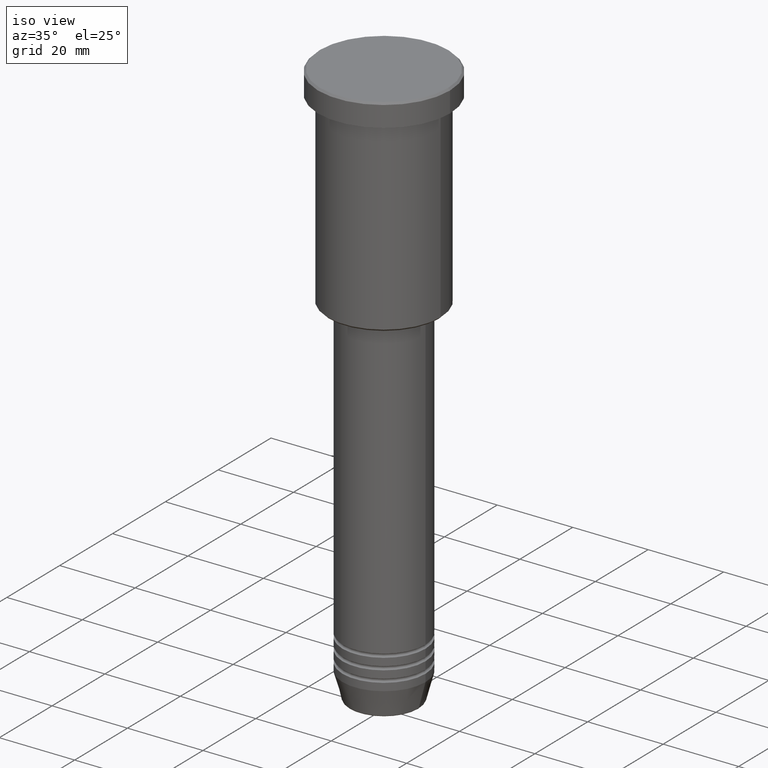
[diagram: clean part render]
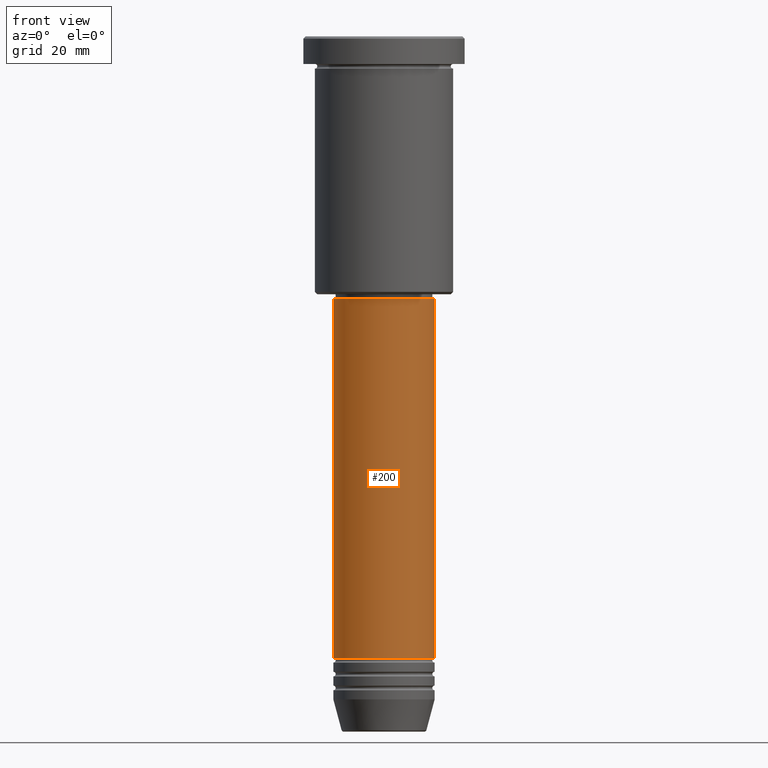
[diagram: tour spotlight — one face highlighted and labeled with its STEP entity id]
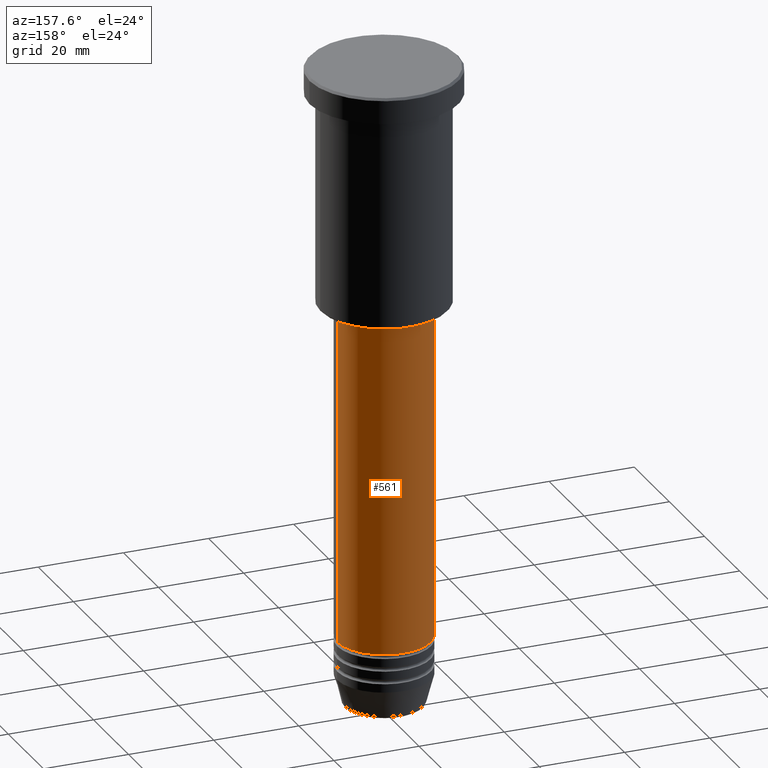
[diagram: tour spotlight — one face highlighted and labeled with its STEP entity id]
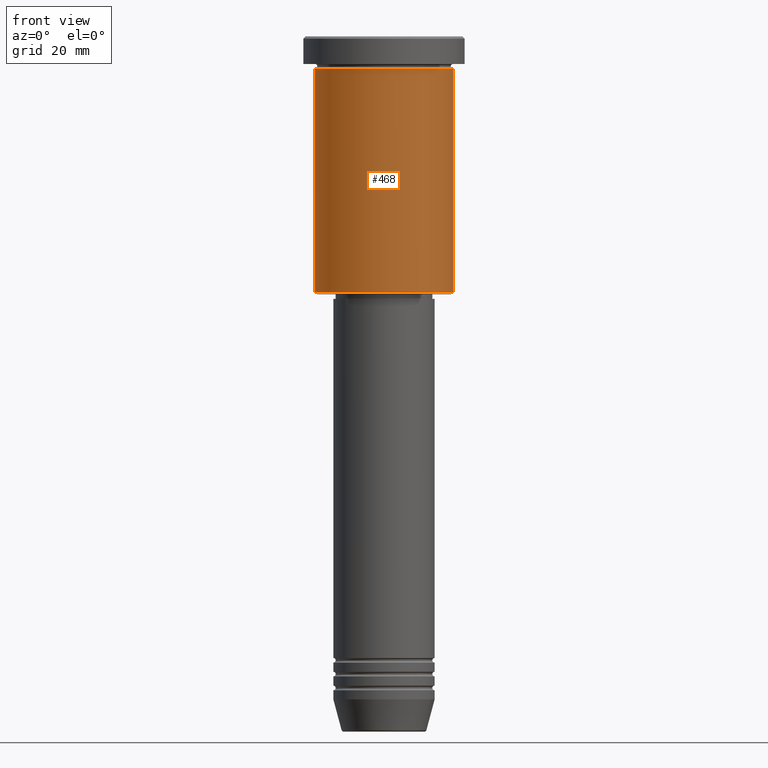
[diagram: tour spotlight — one face highlighted and labeled with its STEP entity id]
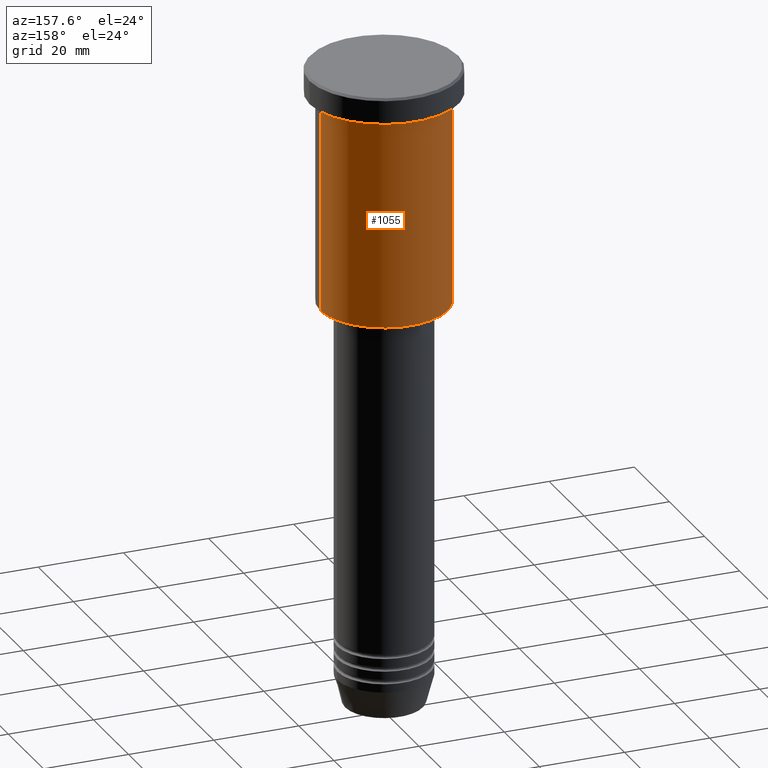
[diagram: tour spotlight — one face highlighted and labeled with its STEP entity id]
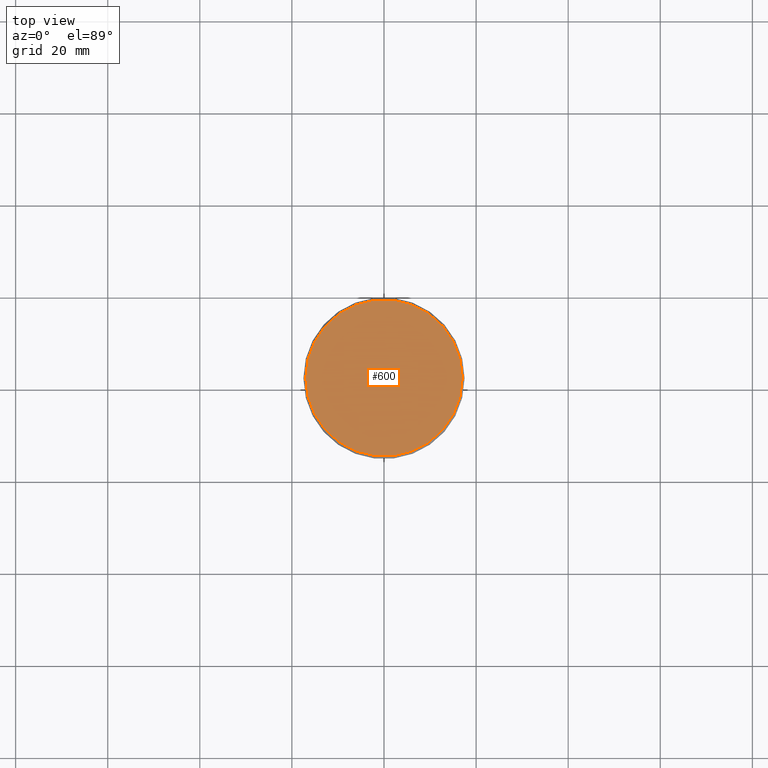
[diagram: tour spotlight — one face highlighted and labeled with its STEP entity id]
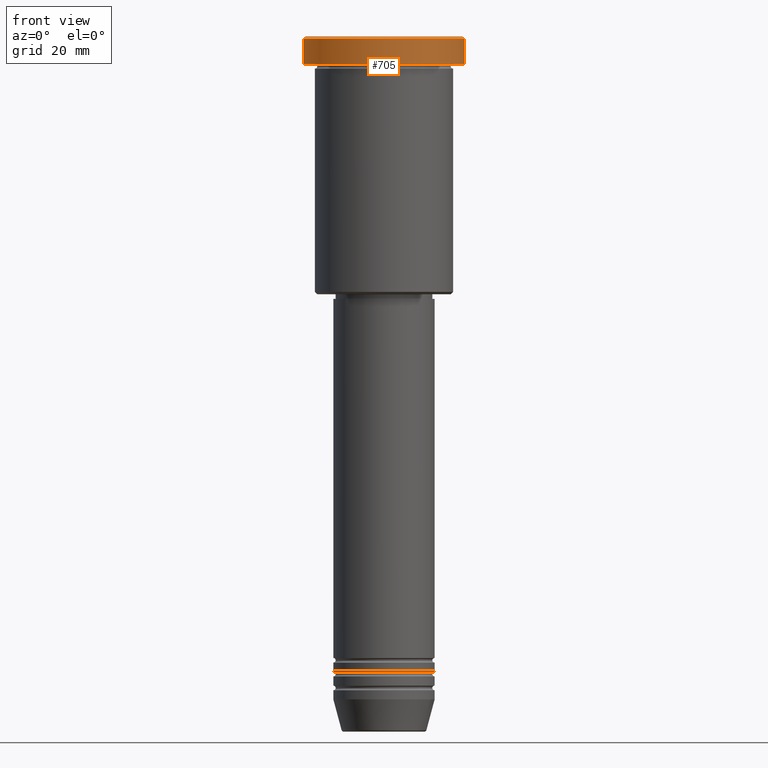
[diagram: tour spotlight — one face highlighted and labeled with its STEP entity id]
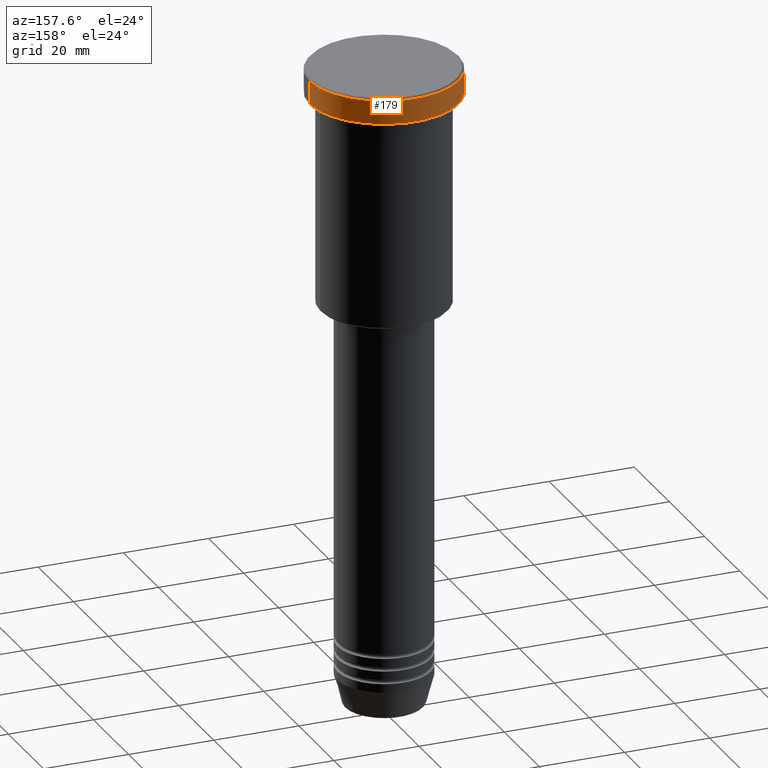
[diagram: tour spotlight — one face highlighted and labeled with its STEP entity id]
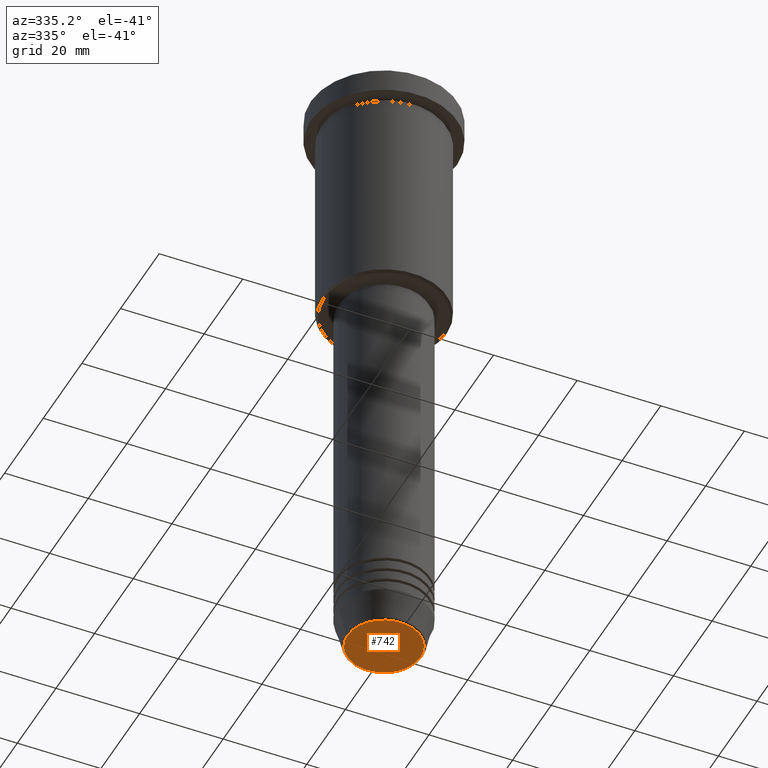
[diagram: tour spotlight — one face highlighted and labeled with its STEP entity id]
A machine part: a face-by-face anatomy tour. The part has 43 B-rep faces; the first image is the clean iso view, then the 8 largest visible faces are spotlighted one at a time (largest first), each with its STEP entity span.

Face 1 — front view, entity #200. In plain terms, the highlighted cylindrical surface (partial cylindrical patch) has radius 11 mm, axis along (-0, -0, 1).
Definition (entity closure, byte-faithful):
#83 = CARTESIAN_POINT ( 'NONE',  ( 0.000000000000000000, 0.000000000000000000, -134.9999999999999716 ) ) ;
#148 = ORIENTED_EDGE ( 'NONE', *, *, #1083, .T. ) ;
#160 = CARTESIAN_POINT ( 'NONE',  ( -11.00000000000000000, 1.347111479062088405E-15, -57.00000000000001421 ) ) ;
#167 = DIRECTION ( 'NONE',  ( 1.000000000000000000, 0.000000000000000000, 0.000000000000000000 ) ) ;
#172 = FACE_OUTER_BOUND ( 'NONE', #384, .T. ) ;
#174 = VERTEX_POINT ( 'NONE', #1042 ) ;
#180 = AXIS2_PLACEMENT_3D ( 'NONE', #83, #617, #1158 ) ;
#200 = ADVANCED_FACE ( 'NONE', ( #172 ), #710, .T. ) ;
#233 = EDGE_CURVE ( 'NONE', #443, #391, #406, .T. ) ;
#254 = VERTEX_POINT ( 'NONE', #160 ) ;
#272 = DIRECTION ( 'NONE',  ( -0.000000000000000000, -0.000000000000000000, 1.000000000000000000 ) ) ;
#330 = DIRECTION ( 'NONE',  ( 1.000000000000000000, 0.000000000000000000, 0.000000000000000000 ) ) ;
#343 = ORIENTED_EDGE ( 'NONE', *, *, #508, .F. ) ;
#384 = EDGE_LOOP ( 'NONE', ( #343, #467, #148, #548 ) ) ;
#391 = VERTEX_POINT ( 'NONE', #815 ) ;
#406 = CIRCLE ( 'NONE', #180, 11.00000000000000000 ) ;
#443 = VERTEX_POINT ( 'NONE', #472 ) ;
#467 = ORIENTED_EDGE ( 'NONE', *, *, #233, .T. ) ;
#472 = CARTESIAN_POINT ( 'NONE',  ( -11.00000000000000000, 1.347111479062088405E-15, -134.9999999999999716 ) ) ;
#508 = EDGE_CURVE ( 'NONE', #443, #254, #671, .T. ) ;
#524 = DIRECTION ( 'NONE',  ( -0.000000000000000000, -0.000000000000000000, 1.000000000000000000 ) ) ;
#548 = ORIENTED_EDGE ( 'NONE', *, *, #1003, .F. ) ;
#565 = DIRECTION ( 'NONE',  ( -0.000000000000000000, -0.000000000000000000, 1.000000000000000000 ) ) ;
#610 = CIRCLE ( 'NONE', #1019, 11.00000000000000000 ) ;
#617 = DIRECTION ( 'NONE',  ( -0.000000000000000000, -0.000000000000000000, 1.000000000000000000 ) ) ;
#667 = CARTESIAN_POINT ( 'NONE',  ( 0.000000000000000000, 0.000000000000000000, -57.00000000000001421 ) ) ;
#671 = LINE ( 'NONE', #954, #1002 ) ;
#710 = CYLINDRICAL_SURFACE ( 'NONE', #786, 11.00000000000000000 ) ;
#786 = AXIS2_PLACEMENT_3D ( 'NONE', #892, #524, #167 ) ;
#812 = VECTOR ( 'NONE', #272, 1000.000000000000000 ) ;
#815 = CARTESIAN_POINT ( 'NONE',  ( 11.00000000000000000, 0.000000000000000000, -134.9999999999999716 ) ) ;
#892 = CARTESIAN_POINT ( 'NONE',  ( 0.000000000000000000, 0.000000000000000000, 0.000000000000000000 ) ) ;
#903 = LINE ( 'NONE', #1155, #812 ) ;
#954 = CARTESIAN_POINT ( 'NONE',  ( -11.00000000000000000, 1.347111479062088405E-15, 0.000000000000000000 ) ) ;
#1002 = VECTOR ( 'NONE', #565, 1000.000000000000000 ) ;
#1003 = EDGE_CURVE ( 'NONE', #254, #174, #610, .T. ) ;
#1019 = AXIS2_PLACEMENT_3D ( 'NONE', #667, #1140, #330 ) ;
#1042 = CARTESIAN_POINT ( 'NONE',  ( 11.00000000000000000, 0.000000000000000000, -57.00000000000001421 ) ) ;
#1083 = EDGE_CURVE ( 'NONE', #391, #174, #903, .T. ) ;
#1140 = DIRECTION ( 'NONE',  ( -0.000000000000000000, -0.000000000000000000, 1.000000000000000000 ) ) ;
#1155 = CARTESIAN_POINT ( 'NONE',  ( 11.00000000000000000, 0.000000000000000000, 0.000000000000000000 ) ) ;
#1158 = DIRECTION ( 'NONE',  ( 1.000000000000000000, 0.000000000000000000, 0.000000000000000000 ) ) ;

Face 2 — auxiliary view, entity #561. In plain terms, the highlighted cylindrical surface (partial cylindrical patch) has radius 11 mm, axis along (-0, -0, 1).
Definition (entity closure, byte-faithful):
#115 = CYLINDRICAL_SURFACE ( 'NONE', #708, 11.00000000000000000 ) ;
#160 = CARTESIAN_POINT ( 'NONE',  ( -11.00000000000000000, 1.347111479062088405E-15, -57.00000000000001421 ) ) ;
#174 = VERTEX_POINT ( 'NONE', #1042 ) ;
#232 = CARTESIAN_POINT ( 'NONE',  ( 0.000000000000000000, 0.000000000000000000, 0.000000000000000000 ) ) ;
#254 = VERTEX_POINT ( 'NONE', #160 ) ;
#272 = DIRECTION ( 'NONE',  ( -0.000000000000000000, -0.000000000000000000, 1.000000000000000000 ) ) ;
#341 = DIRECTION ( 'NONE',  ( -0.000000000000000000, -0.000000000000000000, 1.000000000000000000 ) ) ;
#352 = ORIENTED_EDGE ( 'NONE', *, *, #1120, .T. ) ;
#356 = CARTESIAN_POINT ( 'NONE',  ( 0.000000000000000000, 0.000000000000000000, -134.9999999999999716 ) ) ;
#391 = VERTEX_POINT ( 'NONE', #815 ) ;
#438 = DIRECTION ( 'NONE',  ( -0.000000000000000000, -0.000000000000000000, 1.000000000000000000 ) ) ;
#443 = VERTEX_POINT ( 'NONE', #472 ) ;
#449 = CIRCLE ( 'NONE', #869, 11.00000000000000000 ) ;
#472 = CARTESIAN_POINT ( 'NONE',  ( -11.00000000000000000, 1.347111479062088405E-15, -134.9999999999999716 ) ) ;
#490 = DIRECTION ( 'NONE',  ( -0.000000000000000000, -0.000000000000000000, 1.000000000000000000 ) ) ;
#508 = EDGE_CURVE ( 'NONE', #443, #254, #671, .T. ) ;
#521 = CIRCLE ( 'NONE', #811, 11.00000000000000000 ) ;
#544 = ORIENTED_EDGE ( 'NONE', *, *, #779, .F. ) ;
#558 = FACE_OUTER_BOUND ( 'NONE', #754, .T. ) ;
#561 = ADVANCED_FACE ( 'NONE', ( #558 ), #115, .T. ) ;
#565 = DIRECTION ( 'NONE',  ( -0.000000000000000000, -0.000000000000000000, 1.000000000000000000 ) ) ;
#591 = ORIENTED_EDGE ( 'NONE', *, *, #508, .T. ) ;
#671 = LINE ( 'NONE', #954, #1002 ) ;
#708 = AXIS2_PLACEMENT_3D ( 'NONE', #232, #490, #1133 ) ;
#723 = ORIENTED_EDGE ( 'NONE', *, *, #1083, .F. ) ;
#754 = EDGE_LOOP ( 'NONE', ( #352, #591, #544, #723 ) ) ;
#779 = EDGE_CURVE ( 'NONE', #174, #254, #521, .T. ) ;
#811 = AXIS2_PLACEMENT_3D ( 'NONE', #1160, #438, #1072 ) ;
#812 = VECTOR ( 'NONE', #272, 1000.000000000000000 ) ;
#815 = CARTESIAN_POINT ( 'NONE',  ( 11.00000000000000000, 0.000000000000000000, -134.9999999999999716 ) ) ;
#869 = AXIS2_PLACEMENT_3D ( 'NONE', #356, #341, #1162 ) ;
#903 = LINE ( 'NONE', #1155, #812 ) ;
#954 = CARTESIAN_POINT ( 'NONE',  ( -11.00000000000000000, 1.347111479062088405E-15, 0.000000000000000000 ) ) ;
#1002 = VECTOR ( 'NONE', #565, 1000.000000000000000 ) ;
#1042 = CARTESIAN_POINT ( 'NONE',  ( 11.00000000000000000, 0.000000000000000000, -57.00000000000001421 ) ) ;
#1072 = DIRECTION ( 'NONE',  ( 1.000000000000000000, 0.000000000000000000, 0.000000000000000000 ) ) ;
#1083 = EDGE_CURVE ( 'NONE', #391, #174, #903, .T. ) ;
#1120 = EDGE_CURVE ( 'NONE', #391, #443, #449, .T. ) ;
#1133 = DIRECTION ( 'NONE',  ( 1.000000000000000000, 0.000000000000000000, 0.000000000000000000 ) ) ;
#1155 = CARTESIAN_POINT ( 'NONE',  ( 11.00000000000000000, 0.000000000000000000, 0.000000000000000000 ) ) ;
#1160 = CARTESIAN_POINT ( 'NONE',  ( 0.000000000000000000, 0.000000000000000000, -57.00000000000001421 ) ) ;
#1162 = DIRECTION ( 'NONE',  ( 1.000000000000000000, 0.000000000000000000, 0.000000000000000000 ) ) ;

Face 3 — front view, entity #468. In plain terms, the highlighted cylindrical surface (partial cylindrical patch) has radius 15 mm, axis along (-0, -0, 1).
Definition (entity closure, byte-faithful):
#5 = DIRECTION ( 'NONE',  ( 1.000000000000000000, 0.000000000000000000, 0.000000000000000000 ) ) ;
#38 = CIRCLE ( 'NONE', #142, 15.00000000000000000 ) ;
#47 = ORIENTED_EDGE ( 'NONE', *, *, #206, .T. ) ;
#53 = DIRECTION ( 'NONE',  ( -0.000000000000000000, -0.000000000000000000, 1.000000000000000000 ) ) ;
#84 = LINE ( 'NONE', #538, #280 ) ;
#100 = VERTEX_POINT ( 'NONE', #309 ) ;
#101 = CARTESIAN_POINT ( 'NONE',  ( 0.000000000000000000, 0.000000000000000000, 0.000000000000000000 ) ) ;
#141 = VERTEX_POINT ( 'NONE', #492 ) ;
#142 = AXIS2_PLACEMENT_3D ( 'NONE', #991, #529, #359 ) ;
#169 = VERTEX_POINT ( 'NONE', #240 ) ;
#184 = CYLINDRICAL_SURFACE ( 'NONE', #945, 15.00000000000000000 ) ;
#202 = DIRECTION ( 'NONE',  ( -0.000000000000000000, -0.000000000000000000, 1.000000000000000000 ) ) ;
#206 = EDGE_CURVE ( 'NONE', #169, #100, #38, .T. ) ;
#212 = VERTEX_POINT ( 'NONE', #514 ) ;
#223 = LINE ( 'NONE', #243, #1088 ) ;
#240 = CARTESIAN_POINT ( 'NONE',  ( -15.00000000000000000, 1.836970198721029589E-15, -55.49999999999996447 ) ) ;
#243 = CARTESIAN_POINT ( 'NONE',  ( 15.00000000000000000, 0.000000000000000000, 0.000000000000000000 ) ) ;
#280 = VECTOR ( 'NONE', #612, 1000.000000000000000 ) ;
#309 = CARTESIAN_POINT ( 'NONE',  ( 15.00000000000000000, 0.000000000000000000, -55.49999999999996447 ) ) ;
#357 = CIRCLE ( 'NONE', #1004, 15.00000000000000000 ) ;
#359 = DIRECTION ( 'NONE',  ( -1.000000000000000000, 0.000000000000000000, 0.000000000000000000 ) ) ;
#468 = ADVANCED_FACE ( 'NONE', ( #1081 ), #184, .T. ) ;
#492 = CARTESIAN_POINT ( 'NONE',  ( -15.00000000000000000, 1.836970198721029589E-15, -6.999999999999995559 ) ) ;
#514 = CARTESIAN_POINT ( 'NONE',  ( 15.00000000000000000, 0.000000000000000000, -6.999999999999995559 ) ) ;
#529 = DIRECTION ( 'NONE',  ( -0.000000000000000000, -0.000000000000000000, 1.000000000000000000 ) ) ;
#538 = CARTESIAN_POINT ( 'NONE',  ( -15.00000000000000000, 1.836970198721029589E-15, 0.000000000000000000 ) ) ;
#612 = DIRECTION ( 'NONE',  ( -0.000000000000000000, -0.000000000000000000, 1.000000000000000000 ) ) ;
#629 = DIRECTION ( 'NONE',  ( 1.000000000000000000, 0.000000000000000000, 0.000000000000000000 ) ) ;
#658 = ORIENTED_EDGE ( 'NONE', *, *, #1011, .T. ) ;
#706 = ORIENTED_EDGE ( 'NONE', *, *, #950, .F. ) ;
#775 = EDGE_LOOP ( 'NONE', ( #1001, #47, #658, #706 ) ) ;
#819 = DIRECTION ( 'NONE',  ( -0.000000000000000000, -0.000000000000000000, 1.000000000000000000 ) ) ;
#922 = CARTESIAN_POINT ( 'NONE',  ( 0.000000000000000000, 0.000000000000000000, -6.999999999999995559 ) ) ;
#945 = AXIS2_PLACEMENT_3D ( 'NONE', #101, #819, #629 ) ;
#950 = EDGE_CURVE ( 'NONE', #141, #212, #357, .T. ) ;
#991 = CARTESIAN_POINT ( 'NONE',  ( 0.000000000000000000, 0.000000000000000000, -55.49999999999996447 ) ) ;
#1001 = ORIENTED_EDGE ( 'NONE', *, *, #1096, .F. ) ;
#1004 = AXIS2_PLACEMENT_3D ( 'NONE', #922, #202, #5 ) ;
#1011 = EDGE_CURVE ( 'NONE', #100, #212, #223, .T. ) ;
#1081 = FACE_OUTER_BOUND ( 'NONE', #775, .T. ) ;
#1088 = VECTOR ( 'NONE', #53, 1000.000000000000000 ) ;
#1096 = EDGE_CURVE ( 'NONE', #169, #141, #84, .T. ) ;

Face 4 — auxiliary view, entity #1055. In plain terms, the highlighted cylindrical surface (partial cylindrical patch) has radius 15 mm, axis along (-0, -0, 1).
Definition (entity closure, byte-faithful):
#12 = ORIENTED_EDGE ( 'NONE', *, *, #1011, .F. ) ;
#43 = DIRECTION ( 'NONE',  ( -0.000000000000000000, -0.000000000000000000, 1.000000000000000000 ) ) ;
#53 = DIRECTION ( 'NONE',  ( -0.000000000000000000, -0.000000000000000000, 1.000000000000000000 ) ) ;
#68 = CARTESIAN_POINT ( 'NONE',  ( 0.000000000000000000, 0.000000000000000000, -6.999999999999995559 ) ) ;
#84 = LINE ( 'NONE', #538, #280 ) ;
#100 = VERTEX_POINT ( 'NONE', #309 ) ;
#138 = EDGE_LOOP ( 'NONE', ( #323, #599, #947, #12 ) ) ;
#141 = VERTEX_POINT ( 'NONE', #492 ) ;
#169 = VERTEX_POINT ( 'NONE', #240 ) ;
#171 = DIRECTION ( 'NONE',  ( 1.000000000000000000, 0.000000000000000000, 0.000000000000000000 ) ) ;
#212 = VERTEX_POINT ( 'NONE', #514 ) ;
#219 = CIRCLE ( 'NONE', #729, 15.00000000000000000 ) ;
#223 = LINE ( 'NONE', #243, #1088 ) ;
#235 = DIRECTION ( 'NONE',  ( 1.000000000000000000, 0.000000000000000000, 0.000000000000000000 ) ) ;
#240 = CARTESIAN_POINT ( 'NONE',  ( -15.00000000000000000, 1.836970198721029589E-15, -55.49999999999996447 ) ) ;
#243 = CARTESIAN_POINT ( 'NONE',  ( 15.00000000000000000, 0.000000000000000000, 0.000000000000000000 ) ) ;
#244 = CIRCLE ( 'NONE', #1110, 15.00000000000000000 ) ;
#253 = CARTESIAN_POINT ( 'NONE',  ( 0.000000000000000000, 0.000000000000000000, -55.49999999999996447 ) ) ;
#263 = DIRECTION ( 'NONE',  ( -0.000000000000000000, -0.000000000000000000, 1.000000000000000000 ) ) ;
#280 = VECTOR ( 'NONE', #612, 1000.000000000000000 ) ;
#309 = CARTESIAN_POINT ( 'NONE',  ( 15.00000000000000000, 0.000000000000000000, -55.49999999999996447 ) ) ;
#323 = ORIENTED_EDGE ( 'NONE', *, *, #1152, .T. ) ;
#492 = CARTESIAN_POINT ( 'NONE',  ( -15.00000000000000000, 1.836970198721029589E-15, -6.999999999999995559 ) ) ;
#514 = CARTESIAN_POINT ( 'NONE',  ( 15.00000000000000000, 0.000000000000000000, -6.999999999999995559 ) ) ;
#538 = CARTESIAN_POINT ( 'NONE',  ( -15.00000000000000000, 1.836970198721029589E-15, 0.000000000000000000 ) ) ;
#599 = ORIENTED_EDGE ( 'NONE', *, *, #1096, .T. ) ;
#612 = DIRECTION ( 'NONE',  ( -0.000000000000000000, -0.000000000000000000, 1.000000000000000000 ) ) ;
#729 = AXIS2_PLACEMENT_3D ( 'NONE', #68, #263, #171 ) ;
#731 = AXIS2_PLACEMENT_3D ( 'NONE', #866, #43, #235 ) ;
#768 = FACE_OUTER_BOUND ( 'NONE', #138, .T. ) ;
#803 = EDGE_CURVE ( 'NONE', #212, #141, #219, .T. ) ;
#866 = CARTESIAN_POINT ( 'NONE',  ( 0.000000000000000000, 0.000000000000000000, 0.000000000000000000 ) ) ;
#912 = DIRECTION ( 'NONE',  ( -1.000000000000000000, 0.000000000000000000, 0.000000000000000000 ) ) ;
#947 = ORIENTED_EDGE ( 'NONE', *, *, #803, .F. ) ;
#968 = CYLINDRICAL_SURFACE ( 'NONE', #731, 15.00000000000000000 ) ;
#988 = DIRECTION ( 'NONE',  ( -0.000000000000000000, -0.000000000000000000, 1.000000000000000000 ) ) ;
#1011 = EDGE_CURVE ( 'NONE', #100, #212, #223, .T. ) ;
#1055 = ADVANCED_FACE ( 'NONE', ( #768 ), #968, .T. ) ;
#1088 = VECTOR ( 'NONE', #53, 1000.000000000000000 ) ;
#1096 = EDGE_CURVE ( 'NONE', #169, #141, #84, .T. ) ;
#1110 = AXIS2_PLACEMENT_3D ( 'NONE', #253, #988, #912 ) ;
#1152 = EDGE_CURVE ( 'NONE', #100, #169, #244, .T. ) ;

Face 5 — top view, entity #600. In plain terms, the highlighted planar face has unit normal (0, -0, 1).
Definition (entity closure, byte-faithful):
#16 = VERTEX_POINT ( 'NONE', #147 ) ;
#34 = EDGE_LOOP ( 'NONE', ( #373, #794 ) ) ;
#73 = EDGE_CURVE ( 'NONE', #511, #16, #621, .T. ) ;
#139 = CARTESIAN_POINT ( 'NONE',  ( 0.000000000000000000, 0.000000000000000000, 0.000000000000000000 ) ) ;
#147 = CARTESIAN_POINT ( 'NONE',  ( -17.00000000000004263, 0.000000000000000000, 0.000000000000000000 ) ) ;
#195 = AXIS2_PLACEMENT_3D ( 'NONE', #419, #782, #1144 ) ;
#221 = CARTESIAN_POINT ( 'NONE',  ( 0.000000000000000000, 0.000000000000000000, 0.000000000000000000 ) ) ;
#267 = EDGE_CURVE ( 'NONE', #16, #511, #981, .T. ) ;
#333 = AXIS2_PLACEMENT_3D ( 'NONE', #139, #654, #1035 ) ;
#373 = ORIENTED_EDGE ( 'NONE', *, *, #267, .T. ) ;
#408 = FACE_OUTER_BOUND ( 'NONE', #34, .T. ) ;
#419 = CARTESIAN_POINT ( 'NONE',  ( 0.000000000000000000, 0.000000000000000000, 0.000000000000000000 ) ) ;
#511 = VERTEX_POINT ( 'NONE', #1136 ) ;
#579 = DIRECTION ( 'NONE',  ( -0.000000000000000000, -0.000000000000000000, 1.000000000000000000 ) ) ;
#600 = ADVANCED_FACE ( 'NONE', ( #408 ), #662, .T. ) ;
#621 = CIRCLE ( 'NONE', #724, 17.00000000000004263 ) ;
#654 = DIRECTION ( 'NONE',  ( 0.000000000000000000, -0.000000000000000000, 1.000000000000000000 ) ) ;
#662 = PLANE ( 'NONE',  #333 ) ;
#678 = DIRECTION ( 'NONE',  ( 1.000000000000000000, 0.000000000000000000, 0.000000000000000000 ) ) ;
#724 = AXIS2_PLACEMENT_3D ( 'NONE', #221, #579, #678 ) ;
#782 = DIRECTION ( 'NONE',  ( -0.000000000000000000, -0.000000000000000000, 1.000000000000000000 ) ) ;
#794 = ORIENTED_EDGE ( 'NONE', *, *, #73, .T. ) ;
#981 = CIRCLE ( 'NONE', #195, 17.00000000000004263 ) ;
#1035 = DIRECTION ( 'NONE',  ( 1.000000000000000000, 0.000000000000000000, 0.000000000000000000 ) ) ;
#1136 = CARTESIAN_POINT ( 'NONE',  ( 17.00000000000004263, 2.112515728529187222E-15, 0.000000000000000000 ) ) ;
#1144 = DIRECTION ( 'NONE',  ( 1.000000000000000000, 0.000000000000000000, 0.000000000000000000 ) ) ;

Face 6 — front view, entity #705. In plain terms, the highlighted cylindrical surface (partial cylindrical patch) has radius 17.5 mm, axis along (-0, -0, 1).
Definition (entity closure, byte-faithful):
#26 = CARTESIAN_POINT ( 'NONE',  ( -17.50000000000000000, 2.143131898507868248E-15, 0.000000000000000000 ) ) ;
#60 = DIRECTION ( 'NONE',  ( -0.000000000000000000, -0.000000000000000000, 1.000000000000000000 ) ) ;
#241 = CIRCLE ( 'NONE', #908, 17.50000000000000000 ) ;
#259 = AXIS2_PLACEMENT_3D ( 'NONE', #977, #60, #883 ) ;
#261 = CIRCLE ( 'NONE', #750, 17.50000000000000000 ) ;
#269 = ORIENTED_EDGE ( 'NONE', *, *, #835, .F. ) ;
#293 = CARTESIAN_POINT ( 'NONE',  ( 17.50000000000000000, 0.000000000000000000, -5.999999999999995559 ) ) ;
#321 = CARTESIAN_POINT ( 'NONE',  ( 0.000000000000000000, 0.000000000000000000, -5.999999999999995559 ) ) ;
#361 = ORIENTED_EDGE ( 'NONE', *, *, #970, .T. ) ;
#374 = CARTESIAN_POINT ( 'NONE',  ( -17.50000000000000000, 2.143131898507868248E-15, -5.999999999999995559 ) ) ;
#430 = VERTEX_POINT ( 'NONE', #374 ) ;
#442 = CARTESIAN_POINT ( 'NONE',  ( 17.50000000000000000, 0.000000000000000000, 0.000000000000000000 ) ) ;
#470 = LINE ( 'NONE', #26, #770 ) ;
#485 = VECTOR ( 'NONE', #972, 1000.000000000000000 ) ;
#575 = VERTEX_POINT ( 'NONE', #577 ) ;
#577 = CARTESIAN_POINT ( 'NONE',  ( -17.50000000000000000, 2.143131898507868248E-15, -0.4999999999999865663 ) ) ;
#581 = DIRECTION ( 'NONE',  ( -0.000000000000000000, -0.000000000000000000, 1.000000000000000000 ) ) ;
#620 = EDGE_CURVE ( 'NONE', #430, #881, #241, .T. ) ;
#660 = EDGE_CURVE ( 'NONE', #881, #772, #901, .T. ) ;
#705 = ADVANCED_FACE ( 'NONE', ( #796 ), #966, .T. ) ;
#737 = DIRECTION ( 'NONE',  ( -0.000000000000000000, -0.000000000000000000, 1.000000000000000000 ) ) ;
#750 = AXIS2_PLACEMENT_3D ( 'NONE', #841, #834, #930 ) ;
#770 = VECTOR ( 'NONE', #737, 1000.000000000000000 ) ;
#772 = VERTEX_POINT ( 'NONE', #890 ) ;
#796 = FACE_OUTER_BOUND ( 'NONE', #882, .T. ) ;
#834 = DIRECTION ( 'NONE',  ( 0.000000000000000000, 0.000000000000000000, -1.000000000000000000 ) ) ;
#835 = EDGE_CURVE ( 'NONE', #430, #575, #470, .T. ) ;
#841 = CARTESIAN_POINT ( 'NONE',  ( 0.000000000000000000, 0.000000000000000000, -0.4999999999999865663 ) ) ;
#881 = VERTEX_POINT ( 'NONE', #293 ) ;
#882 = EDGE_LOOP ( 'NONE', ( #269, #1085, #1123, #361 ) ) ;
#883 = DIRECTION ( 'NONE',  ( 1.000000000000000000, 0.000000000000000000, 0.000000000000000000 ) ) ;
#890 = CARTESIAN_POINT ( 'NONE',  ( 17.50000000000000000, 0.000000000000000000, -0.4999999999999865663 ) ) ;
#901 = LINE ( 'NONE', #442, #485 ) ;
#908 = AXIS2_PLACEMENT_3D ( 'NONE', #321, #581, #942 ) ;
#930 = DIRECTION ( 'NONE',  ( 1.000000000000000000, 0.000000000000000000, 0.000000000000000000 ) ) ;
#942 = DIRECTION ( 'NONE',  ( 1.000000000000000000, 0.000000000000000000, 0.000000000000000000 ) ) ;
#966 = CYLINDRICAL_SURFACE ( 'NONE', #259, 17.50000000000000000 ) ;
#970 = EDGE_CURVE ( 'NONE', #772, #575, #261, .T. ) ;
#972 = DIRECTION ( 'NONE',  ( -0.000000000000000000, -0.000000000000000000, 1.000000000000000000 ) ) ;
#977 = CARTESIAN_POINT ( 'NONE',  ( 0.000000000000000000, 0.000000000000000000, 0.000000000000000000 ) ) ;
#1085 = ORIENTED_EDGE ( 'NONE', *, *, #620, .T. ) ;
#1123 = ORIENTED_EDGE ( 'NONE', *, *, #660, .T. ) ;

Face 7 — auxiliary view, entity #179. In plain terms, the highlighted cylindrical surface (partial cylindrical patch) has radius 17.5 mm, axis along (-0, -0, 1).
Definition (entity closure, byte-faithful):
#21 = DIRECTION ( 'NONE',  ( -0.000000000000000000, -0.000000000000000000, 1.000000000000000000 ) ) ;
#26 = CARTESIAN_POINT ( 'NONE',  ( -17.50000000000000000, 2.143131898507868248E-15, 0.000000000000000000 ) ) ;
#113 = ORIENTED_EDGE ( 'NONE', *, *, #835, .T. ) ;
#179 = ADVANCED_FACE ( 'NONE', ( #480 ), #1048, .T. ) ;
#234 = CARTESIAN_POINT ( 'NONE',  ( 0.000000000000000000, 0.000000000000000000, 0.000000000000000000 ) ) ;
#279 = AXIS2_PLACEMENT_3D ( 'NONE', #1097, #379, #651 ) ;
#293 = CARTESIAN_POINT ( 'NONE',  ( 17.50000000000000000, 0.000000000000000000, -5.999999999999995559 ) ) ;
#367 = AXIS2_PLACEMENT_3D ( 'NONE', #234, #21, #755 ) ;
#374 = CARTESIAN_POINT ( 'NONE',  ( -17.50000000000000000, 2.143131898507868248E-15, -5.999999999999995559 ) ) ;
#379 = DIRECTION ( 'NONE',  ( -0.000000000000000000, -0.000000000000000000, 1.000000000000000000 ) ) ;
#430 = VERTEX_POINT ( 'NONE', #374 ) ;
#442 = CARTESIAN_POINT ( 'NONE',  ( 17.50000000000000000, 0.000000000000000000, 0.000000000000000000 ) ) ;
#470 = LINE ( 'NONE', #26, #770 ) ;
#473 = ORIENTED_EDGE ( 'NONE', *, *, #876, .T. ) ;
#475 = ORIENTED_EDGE ( 'NONE', *, *, #1067, .T. ) ;
#480 = FACE_OUTER_BOUND ( 'NONE', #646, .T. ) ;
#485 = VECTOR ( 'NONE', #972, 1000.000000000000000 ) ;
#507 = CARTESIAN_POINT ( 'NONE',  ( 0.000000000000000000, 0.000000000000000000, -0.4999999999999865663 ) ) ;
#512 = DIRECTION ( 'NONE',  ( 0.000000000000000000, 0.000000000000000000, -1.000000000000000000 ) ) ;
#575 = VERTEX_POINT ( 'NONE', #577 ) ;
#577 = CARTESIAN_POINT ( 'NONE',  ( -17.50000000000000000, 2.143131898507868248E-15, -0.4999999999999865663 ) ) ;
#626 = CIRCLE ( 'NONE', #891, 17.50000000000000000 ) ;
#646 = EDGE_LOOP ( 'NONE', ( #473, #113, #475, #925 ) ) ;
#651 = DIRECTION ( 'NONE',  ( 1.000000000000000000, 0.000000000000000000, 0.000000000000000000 ) ) ;
#660 = EDGE_CURVE ( 'NONE', #881, #772, #901, .T. ) ;
#737 = DIRECTION ( 'NONE',  ( -0.000000000000000000, -0.000000000000000000, 1.000000000000000000 ) ) ;
#755 = DIRECTION ( 'NONE',  ( 1.000000000000000000, 0.000000000000000000, 0.000000000000000000 ) ) ;
#770 = VECTOR ( 'NONE', #737, 1000.000000000000000 ) ;
#772 = VERTEX_POINT ( 'NONE', #890 ) ;
#835 = EDGE_CURVE ( 'NONE', #430, #575, #470, .T. ) ;
#876 = EDGE_CURVE ( 'NONE', #881, #430, #1183, .T. ) ;
#880 = DIRECTION ( 'NONE',  ( 1.000000000000000000, 0.000000000000000000, 0.000000000000000000 ) ) ;
#881 = VERTEX_POINT ( 'NONE', #293 ) ;
#890 = CARTESIAN_POINT ( 'NONE',  ( 17.50000000000000000, 0.000000000000000000, -0.4999999999999865663 ) ) ;
#891 = AXIS2_PLACEMENT_3D ( 'NONE', #507, #512, #880 ) ;
#901 = LINE ( 'NONE', #442, #485 ) ;
#925 = ORIENTED_EDGE ( 'NONE', *, *, #660, .F. ) ;
#972 = DIRECTION ( 'NONE',  ( -0.000000000000000000, -0.000000000000000000, 1.000000000000000000 ) ) ;
#1048 = CYLINDRICAL_SURFACE ( 'NONE', #367, 17.50000000000000000 ) ;
#1067 = EDGE_CURVE ( 'NONE', #575, #772, #626, .T. ) ;
#1097 = CARTESIAN_POINT ( 'NONE',  ( 0.000000000000000000, 0.000000000000000000, -5.999999999999995559 ) ) ;
#1183 = CIRCLE ( 'NONE', #279, 17.50000000000000000 ) ;

Face 8 — auxiliary view, entity #742. In plain terms, the highlighted planar face has unit normal (0, -0, 1).
Definition (entity closure, byte-faithful):
#17 = EDGE_CURVE ( 'NONE', #150, #1173, #388, .T. ) ;
#89 = AXIS2_PLACEMENT_3D ( 'NONE', #159, #339, #895 ) ;
#149 = DIRECTION ( 'NONE',  ( 0.000000000000000000, 0.000000000000000000, -1.000000000000000000 ) ) ;
#150 = VERTEX_POINT ( 'NONE', #404 ) ;
#159 = CARTESIAN_POINT ( 'NONE',  ( 0.000000000000000000, 0.000000000000000000, -151.0000000000000284 ) ) ;
#173 = CARTESIAN_POINT ( 'NONE',  ( 8.740692158992656502, 0.000000000000000000, -151.0000000000000284 ) ) ;
#175 = CARTESIAN_POINT ( 'NONE',  ( 0.000000000000000000, 0.000000000000000000, -151.0000000000000284 ) ) ;
#193 = AXIS2_PLACEMENT_3D ( 'NONE', #175, #931, #661 ) ;
#227 = ORIENTED_EDGE ( 'NONE', *, *, #17, .T. ) ;
#251 = PLANE ( 'NONE',  #89 ) ;
#328 = CARTESIAN_POINT ( 'NONE',  ( 0.000000000000000000, 0.000000000000000000, -151.0000000000000284 ) ) ;
#339 = DIRECTION ( 'NONE',  ( 0.000000000000000000, -0.000000000000000000, 1.000000000000000000 ) ) ;
#388 = CIRCLE ( 'NONE', #193, 8.740692158992656502 ) ;
#404 = CARTESIAN_POINT ( 'NONE',  ( -8.740692158992656502, 1.099999016768739653E-15, -151.0000000000000284 ) ) ;
#509 = DIRECTION ( 'NONE',  ( 1.000000000000000000, 0.000000000000000000, 0.000000000000000000 ) ) ;
#606 = ORIENTED_EDGE ( 'NONE', *, *, #793, .T. ) ;
#661 = DIRECTION ( 'NONE',  ( 1.000000000000000000, 0.000000000000000000, 0.000000000000000000 ) ) ;
#742 = ADVANCED_FACE ( 'NONE', ( #1157 ), #251, .F. ) ;
#793 = EDGE_CURVE ( 'NONE', #1173, #150, #1149, .T. ) ;
#895 = DIRECTION ( 'NONE',  ( 1.000000000000000000, 0.000000000000000000, 0.000000000000000000 ) ) ;
#931 = DIRECTION ( 'NONE',  ( 0.000000000000000000, 0.000000000000000000, -1.000000000000000000 ) ) ;
#958 = EDGE_LOOP ( 'NONE', ( #606, #227 ) ) ;
#1038 = AXIS2_PLACEMENT_3D ( 'NONE', #328, #149, #509 ) ;
#1149 = CIRCLE ( 'NONE', #1038, 8.740692158992656502 ) ;
#1157 = FACE_OUTER_BOUND ( 'NONE', #958, .T. ) ;
#1173 = VERTEX_POINT ( 'NONE', #173 ) ;